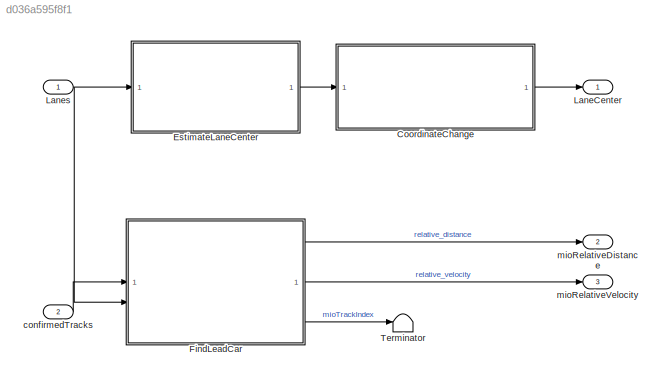
MODEL slx_d036a595f8f1
KIND model
CONFIG AbsTol = auto
CONFIG EnableMultiTasking = on
CONFIG FixedStep = auto
CONFIG MaxStep = auto
CONFIG MinStep = auto
CONFIG RelTol = 1e-3
CONFIG SampleTimeConstraint = Unconstrained
CONFIG SolverName = FixedStepDiscrete
CONFIG StartTime = 0.0
CONFIG StopTime = 10.0
BLOCK [ModelReference] CoordinateChange
  ModelNameDialog = LaneCenterCoordChange
  ModelReferenceVersion = 8.0
BLOCK [ModelReference] EstimateLaneCenter
  ModelNameDialog = EstimateLaneCenter
  ModelReferenceVersion = 8.0
BLOCK [ModelReference] FindLeadCar
  ModelNameDialog = FindLeadCar
  ModelReferenceVersion = 8.0
  PortSchema = {"entries":[{"content":{"sides":[{"content":{"connectorIds":["In2","In1"]},"type":"ConnectorPlacement.EquallySpacedRectSide","uuid":"4349d734-83a0-4c79-9bf4-dd7e1c5047ab"},{"content":{"connectorIds":["Out1","Out2","Out3"],"side":"RIGHT"},"type":"ConnectorPlacement.EquallySpacedRectSide","uuid":"3497a288-e875-428b-aa1d-01beb64c37b8"},{"content":{"connectorIds":[],"side":"TOP"},"type":"ConnectorPlac...<+404ch>
BLOCK [Outport] LaneCenter
  OutDataTypeStr = Bus: BusLaneCenter
BLOCK [Inport] Lanes
  OutDataTypeStr = Bus: LaneSensor
BLOCK [Terminator] Terminator
BLOCK [Inport] confirmedTracks
  BusOutputAsStruct = on
  OutDataTypeStr = Bus: BusMultiObjectTracker
  Port = 2
BLOCK [Outport] mioRelativeDistance
  OutDataTypeStr = double
  Port = 2
BLOCK [Outport] mioRelativeVelocity
  OutDataTypeStr = double
  Port = 3
LINE CoordinateChange:1 -> LaneCenter:1
LINE EstimateLaneCenter:1 -> CoordinateChange:1
LINE FindLeadCar:1 -> mioRelativeDistance:1
LINE FindLeadCar:2 -> mioRelativeVelocity:1
LINE FindLeadCar:3 -> Terminator:1
NET Lanes:1 -> EstimateLaneCenter:1, FindLeadCar:2
LINE confirmedTracks:1 -> FindLeadCar:1
note: NET lines group one-source signal fan-out (src -> all destinations, sorted); 1:1 wires keep LINE
